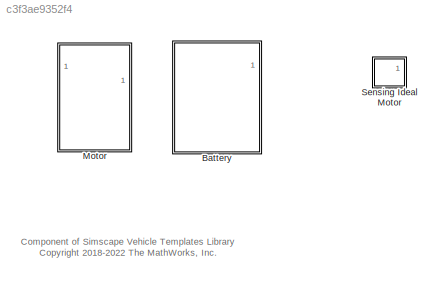
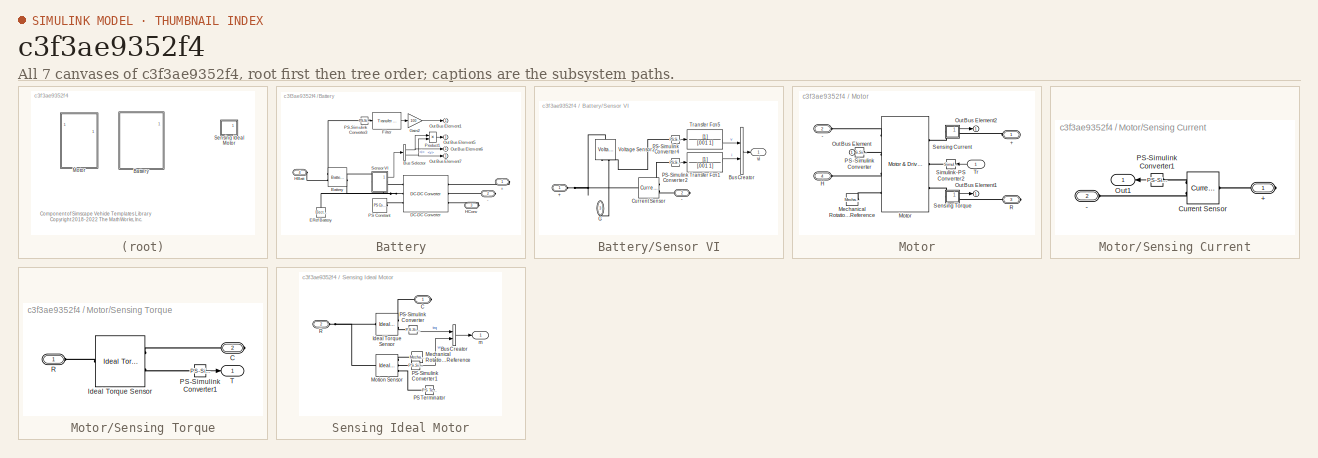
[diagram: thumbnail index - all 7 canvases of the model, root first then tree order]
MODEL slx_c3f3ae9352f4
KIND library
CONFIG AbsTol = auto
CONFIG EnableMultiTasking = off
CONFIG FixedStep = auto
CONFIG MaxStep = auto
CONFIG MinStep = auto
CONFIG RelTol = 1e-3
CONFIG SampleTimeConstraint = Unconstrained
CONFIG SolverName = VariableStepAuto
CONFIG StartTime = 0.0
CONFIG StopTime = 10.0
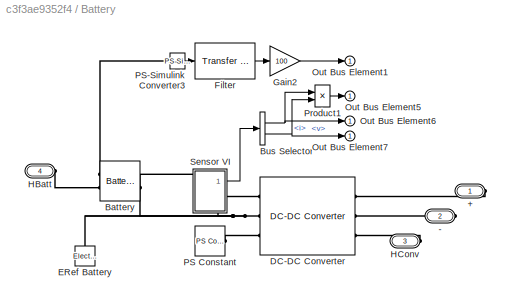
BLOCK [SubSystem] Battery
  Ports = [0, 1, 0, 0, 0, 1, 3]
  RequestExecContextInheritance = off
BLOCK [PMIOPort] Battery/+
  Side = Right
BLOCK [PMIOPort] Battery/-
  Port = 2
  Side = Right
BLOCK [Reference] Battery/Battery  REF=ee_lib/Sources/Battery
(Table-Based)
  NameLocation = top
  Ports = [0, 0, 0, 0, 0, 2, 2]
  SourceBlock = ee_lib/Sources/Battery\n(Table-Based)
  SourceProductBaseCode = PS
  SourceType = Battery\n(Table-Based)
BLOCK [BusSelector] Battery/Bus Selector
  OutputSignals = i,v
  Ports = [1, 2]
BLOCK [Reference] Battery/DC-DC Converter  REF=ee_lib/Semiconductors &
Converters/Converters/DC-DC Converter
  Ports = [0, 0, 0, 0, 0, 3, 3]
  SourceBlock = ee_lib/Semiconductors &\nConverters/Converters/DC-DC Converter
  SourceProductBaseCode = PS
  SourceType = DC-DC Converter
BLOCK [Reference] Battery/ERef Battery  REF=fl_lib/Electrical/Electrical Elements/Electrical Reference
  NameLocation = right
  Ports = [0, 0, 0, 0, 0, 1]
  SourceBlock = fl_lib/Electrical/Electrical Elements/Electrical Reference
  SourceProductBaseCode = PW,SS,VE
  SourceType = Electrical Reference
BLOCK [Reference] Battery/Filter  REF=simulink_extras/Additional
Linear/Transfer Fcn
(with initial outputs)
  Ports = [1, 1]
  SourceBlock = simulink_extras/Additional\nLinear/Transfer Fcn\n(with initial outputs)
  SourceProductBaseCode = SL
  SourceType = Transfer Function with Initial Outputs
BLOCK [Gain] Battery/Gain2
  Gain = 100
BLOCK [PMIOPort] Battery/HBatt
  Port = 4
  Side = Left
BLOCK [PMIOPort] Battery/HConv
  Port = 3
  Side = Right
BLOCK [Outport] Battery/Out Bus Element1
BLOCK [Outport] Battery/Out Bus Element5
BLOCK [Outport] Battery/Out Bus Element6
BLOCK [Outport] Battery/Out Bus Element7
BLOCK [Reference] Battery/PS Constant  REF=fl_lib/Physical Signals/Sources/PS Constant
  Ports = [0, 0, 0, 0, 0, 0, 1]
  SourceBlock = fl_lib/Physical Signals/Sources/PS Constant
  SourceProductBaseCode = PW,SS,VE
  SourceType = PS Constant
BLOCK [Reference] Battery/PS-Simulink Converter3  REF=nesl_utility/PS-Simulink
Converter
  Ports = [0, 1, 0, 0, 0, 1]
  SourceBlock = nesl_utility/PS-Simulink\nConverter
  SourceProductBaseCode = SS,PW,VE
  SourceType = PS-Simulink\nConverter
BLOCK [Product] Battery/Product1
  Ports = [2, 1]
BLOCK [SubSystem] Battery/Sensor VI
  NameLocation = top
  Ports = [0, 1, 0, 0, 0, 1, 2]
  RequestExecContextInheritance = off
BLOCK [PMIOPort] Battery/Sensor VI/+
  Side = Left
BLOCK [PMIOPort] Battery/Sensor VI/-
  Port = 2
  Side = Right
BLOCK [BusCreator] Battery/Sensor VI/Bus Creator
  DisplayOption = bar
  InheritFromInputs = on
  Inputs = 2
  Ports = [2, 1]
BLOCK [Reference] Battery/Sensor VI/Current Sensor  REF=fl_lib/Electrical/Electrical Sensors/Current Sensor
  Ports = [0, 0, 0, 0, 0, 1, 2]
  SourceBlock = fl_lib/Electrical/Electrical Sensors/Current Sensor
  SourceProductBaseCode = PW,SS,VE
  SourceType = Current Sensor
BLOCK [PMIOPort] Battery/Sensor VI/G
  NameLocation = left
  Port = 3
  Side = Right
BLOCK [Reference] Battery/Sensor VI/PS-Simulink Converter2  REF=nesl_utility/PS-Simulink
Converter
  Ports = [0, 1, 0, 0, 0, 1]
  SourceBlock = nesl_utility/PS-Simulink\nConverter
  SourceProductBaseCode = SS,PW,VE
  SourceType = PS-Simulink\nConverter
BLOCK [Reference] Battery/Sensor VI/PS-Simulink Converter4  REF=nesl_utility/PS-Simulink
Converter
  Ports = [0, 1, 0, 0, 0, 1]
  SourceBlock = nesl_utility/PS-Simulink\nConverter
  SourceProductBaseCode = SS,PW,VE
  SourceType = PS-Simulink\nConverter
BLOCK [TransferFcn] Battery/Sensor VI/Transfer Fcn1
  Denominator = [.001 1]
BLOCK [TransferFcn] Battery/Sensor VI/Transfer Fcn5
  Denominator = [.001 1]
BLOCK [Reference] Battery/Sensor VI/Voltage Sensor2  REF=fl_lib/Electrical/Electrical Sensors/Voltage Sensor
  NameLocation = right
  Ports = [0, 0, 0, 0, 0, 1, 2]
  SourceBlock = fl_lib/Electrical/Electrical Sensors/Voltage Sensor
  SourceProductBaseCode = PW,SS,VE
  SourceType = Voltage Sensor
BLOCK [Outport] Battery/Sensor VI/vi
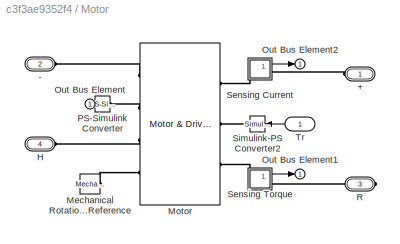
BLOCK [SubSystem] Motor
  Ports = [1, 1, 0, 0, 0, 3, 1]
  RequestExecContextInheritance = off
BLOCK [PMIOPort] Motor/+
  Side = Left
BLOCK [PMIOPort] Motor/-
  Port = 2
  Side = Left
BLOCK [PMIOPort] Motor/H
  Port = 4
  Side = Left
BLOCK [Reference] Motor/Mechanical Rotational Reference  REF=fl_lib/Mechanical/Rotational Elements/Mechanical
Rotational Reference
  NameLocation = top
  Ports = [0, 0, 0, 0, 0, 1]
  SourceBlock = fl_lib/Mechanical/Rotational Elements/Mechanical\nRotational Reference
  SourceProductBaseCode = PW,SS,VE
  SourceType = Mechanical\nRotational Reference
BLOCK [Reference] Motor/Motor  REF=ee_lib/Electromechanical/Motor & Drive
(System Level)
  Ports = [0, 0, 0, 0, 0, 3, 4]
  SourceBlock = ee_lib/Electromechanical/Motor & Drive\n(System Level)
  SourceProductBaseCode = PS
  SourceType = Motor & Drive\n(System Level)
BLOCK [Outport] Motor/Out Bus Element
  NameLocation = top
  VectorParamsAs1DForOutWhenUnconnected = off
BLOCK [Outport] Motor/Out Bus Element1
  VectorParamsAs1DForOutWhenUnconnected = off
BLOCK [Outport] Motor/Out Bus Element2
  VectorParamsAs1DForOutWhenUnconnected = off
BLOCK [Reference] Motor/PS-Simulink Converter  REF=nesl_utility/PS-Simulink
Converter
  NameLocation = top
  Ports = [0, 1, 0, 0, 0, 1]
  SourceBlock = nesl_utility/PS-Simulink\nConverter
  SourceProductBaseCode = SS,PW,VE
  SourceType = PS-Simulink\nConverter
BLOCK [PMIOPort] Motor/R
  Port = 3
  Side = Right
BLOCK [SubSystem] Motor/Sensing Current
  Ports = [0, 1, 0, 0, 0, 1, 1]
  RequestExecContextInheritance = off
BLOCK [PMIOPort] Motor/Sensing Current/+
  Side = Right
BLOCK [PMIOPort] Motor/Sensing Current/-
  Port = 2
  Side = Left
BLOCK [Reference] Motor/Sensing Current/Current Sensor  REF=fl_lib/Electrical/Electrical Sensors/Current Sensor
  Ports = [0, 0, 0, 0, 0, 1, 2]
  SourceBlock = fl_lib/Electrical/Electrical Sensors/Current Sensor
  SourceProductBaseCode = PW,SS,VE
  SourceType = Current Sensor
BLOCK [Outport] Motor/Sensing Current/Out1
  VectorParamsAs1DForOutWhenUnconnected = off
BLOCK [Reference] Motor/Sensing Current/PS-Simulink Converter1  REF=nesl_utility/PS-Simulink
Converter
  NameLocation = top
  Ports = [0, 1, 0, 0, 0, 1]
  SourceBlock = nesl_utility/PS-Simulink\nConverter
  SourceProductBaseCode = SS,PW,VE
  SourceType = PS-Simulink\nConverter
BLOCK [SubSystem] Motor/Sensing Torque
  Ports = [0, 1, 0, 0, 0, 1, 1]
  RequestExecContextInheritance = off
BLOCK [PMIOPort] Motor/Sensing Torque/C
  Port = 2
  Side = Right
BLOCK [Reference] Motor/Sensing Torque/Ideal Torque Sensor  REF=fl_lib/Mechanical/Mechanical Sensors/Ideal Torque Sensor
  Ports = [0, 0, 0, 0, 0, 1, 2]
  SourceBlock = fl_lib/Mechanical/Mechanical Sensors/Ideal Torque Sensor
  SourceProductBaseCode = PW,SS,VE
  SourceType = Ideal Torque Sensor
BLOCK [Reference] Motor/Sensing Torque/PS-Simulink Converter1  REF=nesl_utility/PS-Simulink
Converter
  Ports = [0, 1, 0, 0, 0, 1]
  SourceBlock = nesl_utility/PS-Simulink\nConverter
  SourceProductBaseCode = SS,PW,VE
  SourceType = PS-Simulink\nConverter
BLOCK [PMIOPort] Motor/Sensing Torque/R
  Side = Left
BLOCK [Outport] Motor/Sensing Torque/T
  VectorParamsAs1DForOutWhenUnconnected = off
BLOCK [Reference] Motor/Simulink-PS Converter2  REF=nesl_utility/Simulink-PS
Converter
  Ports = [1, 0, 0, 0, 0, 0, 1]
  SourceBlock = nesl_utility/Simulink-PS\nConverter
  SourceProductBaseCode = SS,PW,VE
  SourceType = Simulink-PS\nConverter
BLOCK [Inport] Motor/Tr
BLOCK [SubSystem] Sensing Ideal Motor
  Ports = [0, 1, 0, 0, 0, 1, 1]
  RequestExecContextInheritance = off
BLOCK [BusCreator] Sensing Ideal Motor/Bus Creator
  DisplayOption = bar
  InheritFromInputs = on
  Inputs = 2
  Ports = [2, 1]
BLOCK [PMIOPort] Sensing Ideal Motor/C
  Side = Right
BLOCK [Reference] Sensing Ideal Motor/Ideal Torque Sensor  REF=fl_lib/Mechanical/Mechanical Sensors/Ideal Torque Sensor
  Ports = [0, 0, 0, 0, 0, 1, 2]
  SourceBlock = fl_lib/Mechanical/Mechanical Sensors/Ideal Torque Sensor
  SourceProductBaseCode = PW,SS,VE
  SourceType = Ideal Torque Sensor
BLOCK [Reference] Sensing Ideal Motor/Mechanical Rotational Reference  REF=fl_lib/Mechanical/Rotational Elements/Mechanical
Rotational Reference
  Ports = [0, 0, 0, 0, 0, 1]
  SourceBlock = fl_lib/Mechanical/Rotational Elements/Mechanical\nRotational Reference
  SourceProductBaseCode = PW,SS,VE
  SourceType = Mechanical\nRotational Reference
BLOCK [Reference] Sensing Ideal Motor/Motion Sensor  REF=fl_lib/Mechanical/Mechanical Sensors/Ideal Rotational
Motion Sensor
  Ports = [0, 0, 0, 0, 0, 1, 3]
  SourceBlock = fl_lib/Mechanical/Mechanical Sensors/Ideal Rotational\nMotion Sensor
  SourceProductBaseCode = PW,SS,VE
  SourceType = Ideal Rotational\nMotion Sensor
BLOCK [Reference] Sensing Ideal Motor/PS Terminator  REF=fl_lib/Physical Signals/Sinks/PS Terminator
  Ports = [0, 0, 0, 0, 0, 1]
  SourceBlock = fl_lib/Physical Signals/Sinks/PS Terminator
  SourceProductBaseCode = PW,SS,VE
  SourceType = PS Terminator
BLOCK [Reference] Sensing Ideal Motor/PS-Simulink Converter  REF=nesl_utility/PS-Simulink
Converter
  NameLocation = top
  Ports = [0, 1, 0, 0, 0, 1]
  SourceBlock = nesl_utility/PS-Simulink\nConverter
  SourceProductBaseCode = SS,PW,VE
  SourceType = PS-Simulink\nConverter
BLOCK [Reference] Sensing Ideal Motor/PS-Simulink Converter1  REF=nesl_utility/PS-Simulink
Converter
  NameLocation = top
  Ports = [0, 1, 0, 0, 0, 1]
  SourceBlock = nesl_utility/PS-Simulink\nConverter
  SourceProductBaseCode = SS,PW,VE
  SourceType = PS-Simulink\nConverter
BLOCK [PMIOPort] Sensing Ideal Motor/R
  Port = 2
  Side = Left
BLOCK [Outport] Sensing Ideal Motor/m
  VectorParamsAs1DForOutWhenUnconnected = off
ANNOTATION (root): Component of Simscape Vehicle Templates Library <copyright redacted>
NET Battery/Bus Selector:1 -> Battery/Out Bus Element6:1, Battery/Product1:1
NET Battery/Bus Selector:2 -> Battery/Out Bus Element7:1, Battery/Product1:2
LINE Battery/Filter:1 -> Battery/Gain2:1
LINE Battery/Gain2:1 -> Battery/Out Bus Element1:1
LINE Battery/PS-Simulink Converter3:1 -> Battery/Filter:1
LINE Battery/Product1:1 -> Battery/Out Bus Element5:1
LINE Battery/Sensor VI/Bus Creator:1 -> Battery/Sensor VI/vi:1
LINE Battery/Sensor VI/PS-Simulink Converter2:1 -> Battery/Sensor VI/Transfer Fcn1:1
LINE Battery/Sensor VI/PS-Simulink Converter4:1 -> Battery/Sensor VI/Transfer Fcn5:1
LINE Battery/Sensor VI/Transfer Fcn1:1 -> Battery/Sensor VI/Bus Creator:2
LINE Battery/Sensor VI/Transfer Fcn5:1 -> Battery/Sensor VI/Bus Creator:1
LINE Battery/Sensor VI:1 -> Battery/Bus Selector:1
LINE Motor/PS-Simulink Converter:1 -> Motor/Out Bus Element:1
LINE Motor/Sensing Current/PS-Simulink Converter1:1 -> Motor/Sensing Current/Out1:1
LINE Motor/Sensing Current:1 -> Motor/Out Bus Element2:1
LINE Motor/Sensing Torque/PS-Simulink Converter1:1 -> Motor/Sensing Torque/T:1
LINE Motor/Sensing Torque:1 -> Motor/Out Bus Element1:1
LINE Motor/Tr:1 -> Motor/Simulink-PS Converter2:1
LINE Sensing Ideal Motor/Bus Creator:1 -> Sensing Ideal Motor/m:1
LINE Sensing Ideal Motor/PS-Simulink Converter1:1 -> Sensing Ideal Motor/Bus Creator:2
LINE Sensing Ideal Motor/PS-Simulink Converter:1 -> Sensing Ideal Motor/Bus Creator:1
PLINE Battery/+:RConn1 -- Battery/DC-DC Converter:RConn1
PLINE Battery/-:RConn1 -- Battery/DC-DC Converter:RConn2
PLINE Battery/Battery:LConn1 -- Battery/Sensor VI:LConn1
PLINE Battery/Battery:LConn2 -- Battery/PS-Simulink Converter3:LConn1
PNET net1: Battery/Battery:RConn1 -- Battery/DC-DC Converter:LConn2 -- Battery/ERef Battery:LConn1 -- Battery/Sensor VI:RConn2
PLINE Battery/Battery:RConn2 -- Battery/HBatt:RConn1
PLINE Battery/DC-DC Converter:LConn1 -- Battery/Sensor VI:RConn1
PLINE Battery/DC-DC Converter:LConn3 -- Battery/PS Constant:RConn1
PLINE Battery/DC-DC Converter:RConn3 -- Battery/HConv:RConn1
PNET net2: Battery/Sensor VI/+:RConn1 -- Battery/Sensor VI/Current Sensor:LConn1 -- Battery/Sensor VI/Voltage Sensor2:LConn1
PLINE Battery/Sensor VI/-:RConn1 -- Battery/Sensor VI/Current Sensor:RConn2
PLINE Battery/Sensor VI/Current Sensor:RConn1 -- Battery/Sensor VI/PS-Simulink Converter2:LConn1
PLINE Battery/Sensor VI/G:RConn1 -- Battery/Sensor VI/Voltage Sensor2:RConn2
PLINE Battery/Sensor VI/PS-Simulink Converter4:LConn1 -- Battery/Sensor VI/Voltage Sensor2:RConn1
PLINE Motor/+:RConn1 -- Motor/Sensing Current:RConn1
PLINE Motor/-:RConn1 -- Motor/Motor:RConn1
PLINE Motor/H:RConn1 -- Motor/Motor:RConn3
PLINE Motor/Mechanical Rotational Reference:LConn1 -- Motor/Motor:RConn4
PLINE Motor/Motor:LConn1 -- Motor/Sensing Current:LConn1
PLINE Motor/Motor:LConn2 -- Motor/Simulink-PS Converter2:RConn1
PLINE Motor/Motor:LConn3 -- Motor/Sensing Torque:LConn1
PLINE Motor/Motor:RConn2 -- Motor/PS-Simulink Converter:LConn1
PLINE Motor/R:RConn1 -- Motor/Sensing Torque:RConn1
PLINE Motor/Sensing Current/+:RConn1 -- Motor/Sensing Current/Current Sensor:LConn1
PLINE Motor/Sensing Current/-:RConn1 -- Motor/Sensing Current/Current Sensor:RConn2
PLINE Motor/Sensing Current/Current Sensor:RConn1 -- Motor/Sensing Current/PS-Simulink Converter1:LConn1
PLINE Motor/Sensing Torque/C:RConn1 -- Motor/Sensing Torque/Ideal Torque Sensor:RConn1
PLINE Motor/Sensing Torque/Ideal Torque Sensor:LConn1 -- Motor/Sensing Torque/R:RConn1
PLINE Motor/Sensing Torque/Ideal Torque Sensor:RConn2 -- Motor/Sensing Torque/PS-Simulink Converter1:LConn1
PLINE Sensing Ideal Motor/C:RConn1 -- Sensing Ideal Motor/Ideal Torque Sensor:RConn1
PNET net3: Sensing Ideal Motor/Ideal Torque Sensor:LConn1 -- Sensing Ideal Motor/Motion Sensor:LConn1 -- Sensing Ideal Motor/R:RConn1
PLINE Sensing Ideal Motor/Ideal Torque Sensor:RConn2 -- Sensing Ideal Motor/PS-Simulink Converter:LConn1
PLINE Sensing Ideal Motor/Mechanical Rotational Reference:LConn1 -- Sensing Ideal Motor/Motion Sensor:RConn1
PLINE Sensing Ideal Motor/Motion Sensor:RConn2 -- Sensing Ideal Motor/PS-Simulink Converter1:LConn1
PLINE Sensing Ideal Motor/Motion Sensor:RConn3 -- Sensing Ideal Motor/PS Terminator:LConn1
note: NET lines group one-source signal fan-out (src -> all destinations, sorted); 1:1 wires keep LINE; PNET lines group multi-terminal physical nets as a canonical sorted terminal list (undirected conserving connections); 2-terminal nets keep the pairwise PLINE form
